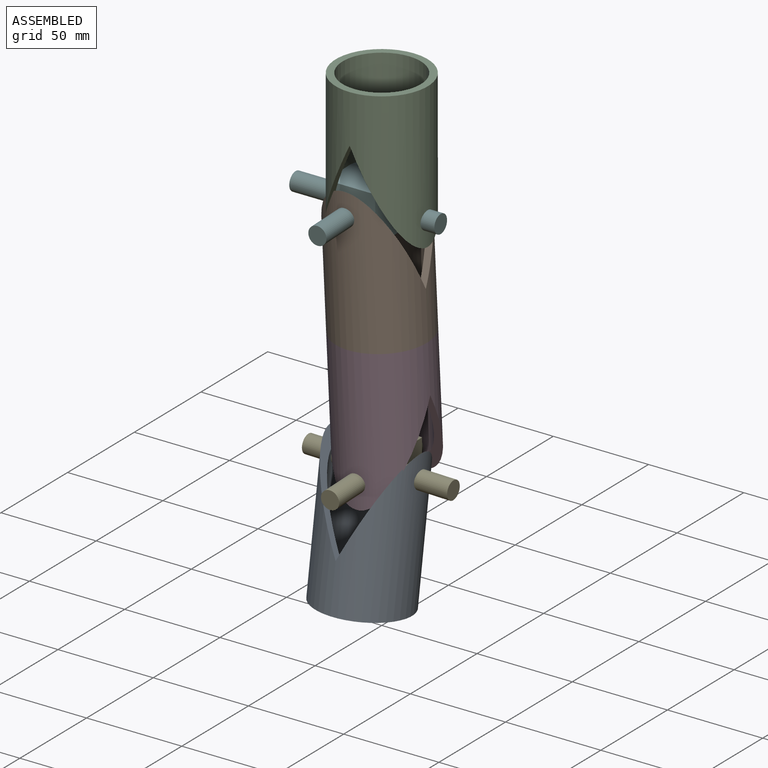
[diagram: assembled view]
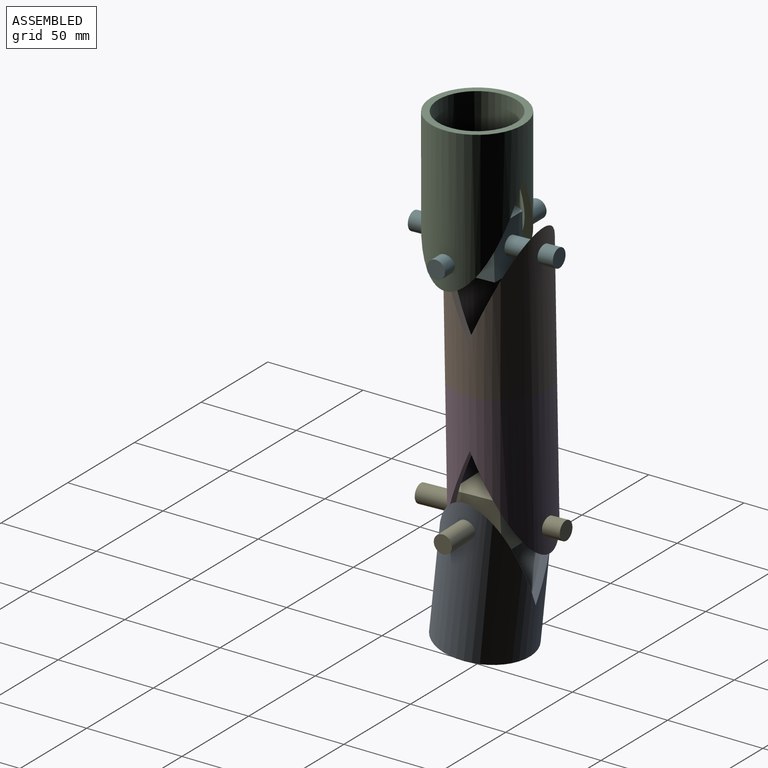
[diagram: assembled view, second angle]
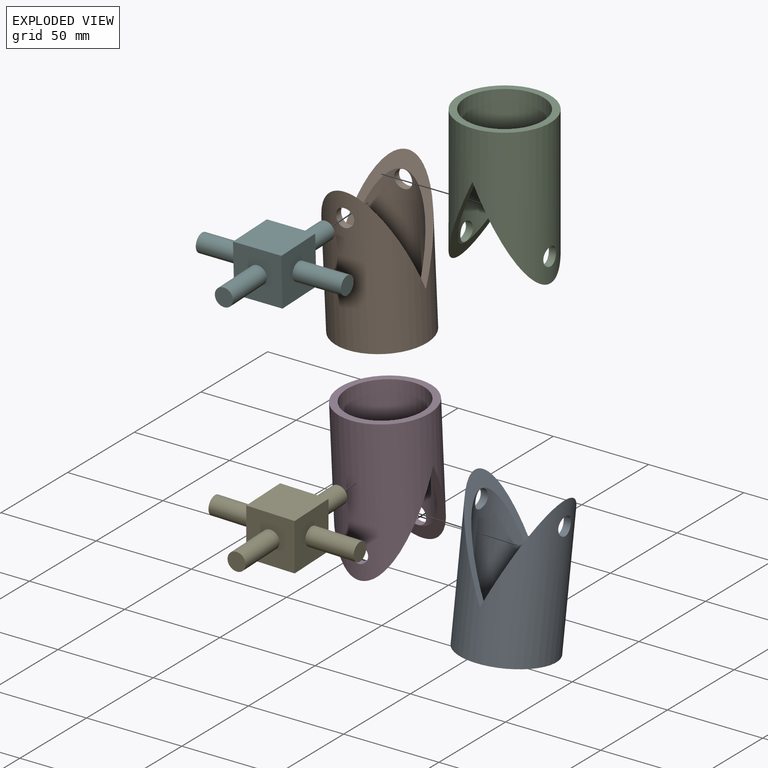
[diagram: exploded view]
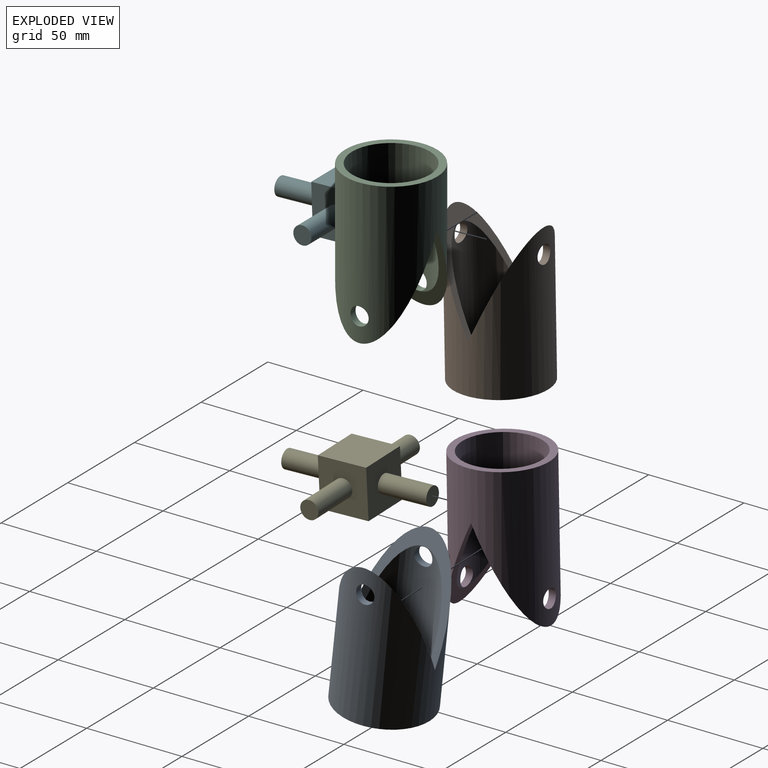
[diagram: exploded view, second angle]
ASSEMBLY  parts=6 mates=5
PART A: 7 faces, bbox 76.4x48.3x48.3 mm
  f0: cylinder r=20.45mm len=68.59mm, axis (-1,0,0), area 6640.5mm2, adj f2,f3,f4,f5,f6
  f1: cylinder r=24.13mm len=76.37mm, axis (-1,0,0), area 8611.2mm2, adj f2,f3,f4,f5,f6
  f2: plane 48.26x48.26mm, normal (-1,0,0), area 515.8mm2, adj f0,f1
  f3: plane 50.8x48.26mm, normal (0.43,-0.9,0), area 601.1mm2, adj f0,f1,f4
  f4: plane 50.8x48.26mm, normal (0.43,0.9,0), area 601.1mm2, adj f0,f1,f3
  f5: cylinder r=4.76mm len=9.53mm, axis (0,-1,0), area 111.5mm2, adj f0,f1
  f6: cylinder r=4.76mm len=9.53mm, axis (0,-1,0), area 111.5mm2, adj f0,f1
PART B: same geometry as A
PART C: same geometry as A
PART D: same geometry as A
PART E: 14 faces, bbox 76.2x25.4x76.2 mm
  f0: plane 25.4x25.4mm, normal (0,0,1), area 573.9mm2, adj f1,f3,f4,f5,f6
  f1: plane 25.4x25.4mm, normal (-1,0,0), area 573.9mm2, adj f0,f2,f4,f5,f8
  f2: plane 25.4x25.4mm, normal (0,0,-1), area 573.9mm2, adj f1,f3,f4,f5,f10
  f3: plane 25.4x25.4mm, normal (1,0,0), area 573.9mm2, adj f0,f2,f4,f5,f12
  f4: plane 25.4x25.4mm, normal (0,-1,0), area 645.2mm2, adj f0,f1,f2,f3
  f5: plane 25.4x25.4mm, normal (0,1,0), area 645.2mm2, adj f0,f1,f2,f3
  f6: cylinder r=4.76mm len=25.4mm, axis (0,0,-1), area 760.1mm2, adj f0,f7
  f7: plane 9.53x9.53mm, normal (0,0,1), area 71.3mm2, adj f6
  f8: cylinder r=4.76mm len=25.4mm, axis (1,0,0), area 760.1mm2, adj f1,f9
  f9: plane 9.53x9.53mm, normal (-1,0,0), area 71.3mm2, adj f8
  f10: cylinder r=4.76mm len=25.4mm, axis (0,0,1), area 760.1mm2, adj f2,f11
  f11: plane 9.53x9.53mm, normal (0,0,-1), area 71.3mm2, adj f10
  f12: cylinder r=4.76mm len=25.4mm, axis (-1,0,0), area 760.1mm2, adj f3,f13
  f13: plane 9.53x9.53mm, normal (1,0,0), area 71.3mm2, adj f12
PART F: same geometry as E
PLACE A rot(axis=(0.56,-0.55,0.62),115.3deg) t=(-8.85,-2.14,-253.3)mm
PLACE B rot(axis=(-0.7,0.01,-0.71),178.6deg) t=(-5.77,8.53,-126.73)mm
PLACE C rot(axis=(-0.58,0.58,0.58),120deg) t=(0,0,0)mm
PLACE D rot(axis=(0.02,1,0.02),88.8deg) t=(-5.77,8.53,-126.73)mm
PLACE E rot(axis=(0.01,-0.72,0.7),179deg) t=(-4.39,5.57,-190.35)mm
PLACE F rot(axis=(1,0,0),91.9deg) t=(-7.15,0,-63.5)mm
MATE fastened D.f1 <-> B.f1  axis (-0.02,-0.03,1) through (-5.77,8.53,-126.73)mm
MATE cylindrical A.f5 <-> E.f8  axis (1,0,-0.02) through (14.66,5.58,-190.81)mm
MATE cylindrical C.f5 <-> F.f8  axis (1,0,0) through (-19.85,0,-63.5)mm
MATE cylindrical B.f5 <-> F.f6  axis (0,1,0.03) through (-7.15,-17.77,-64.1)mm
MATE cylindrical E.f6 <-> D.f5  axis (0,1,0.03) through (-4.39,-19.82,-191.21)mm
